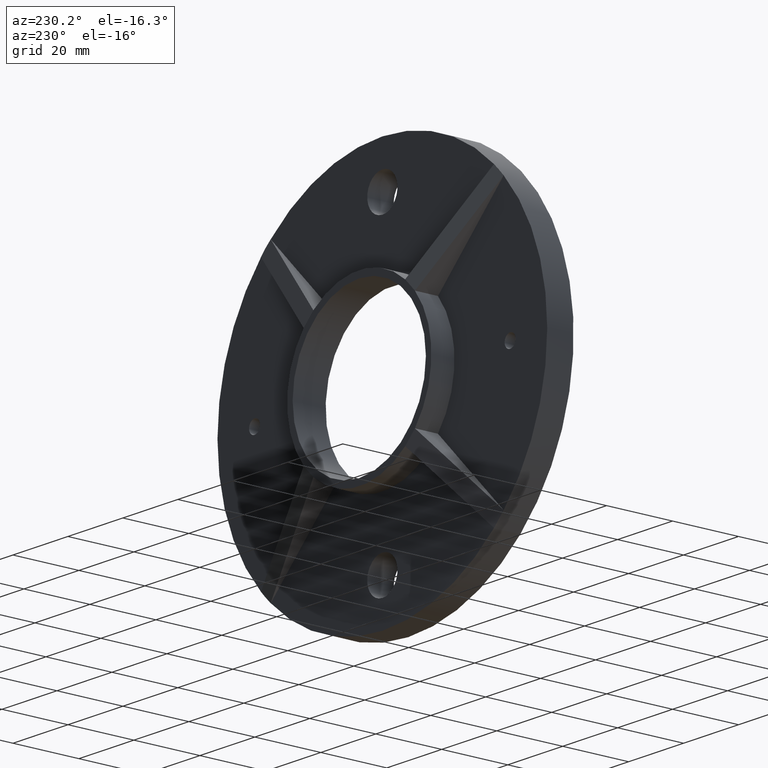
[diagram: clean part render]
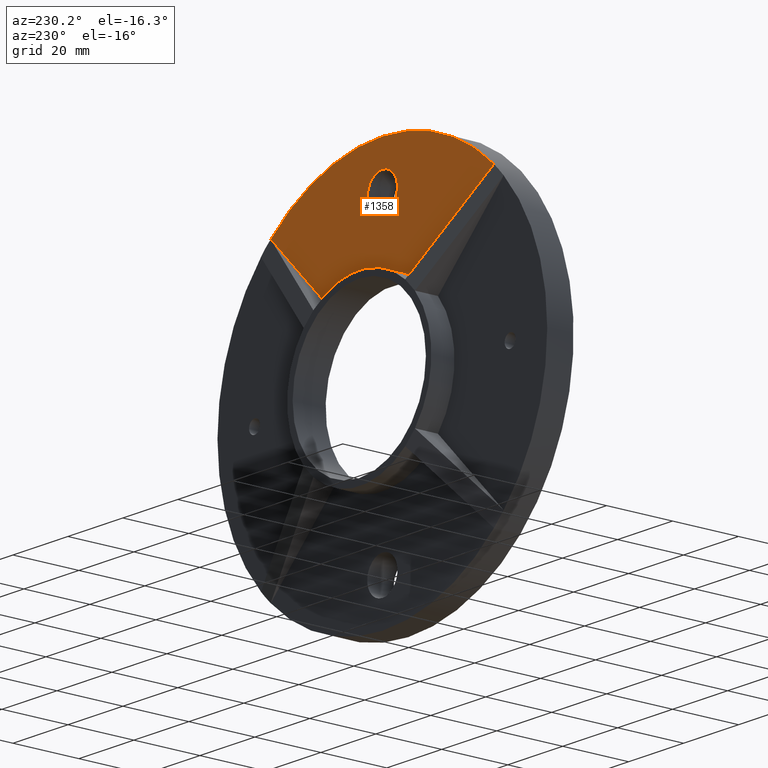
[diagram: same view with one face highlighted and labeled with its STEP entity id]
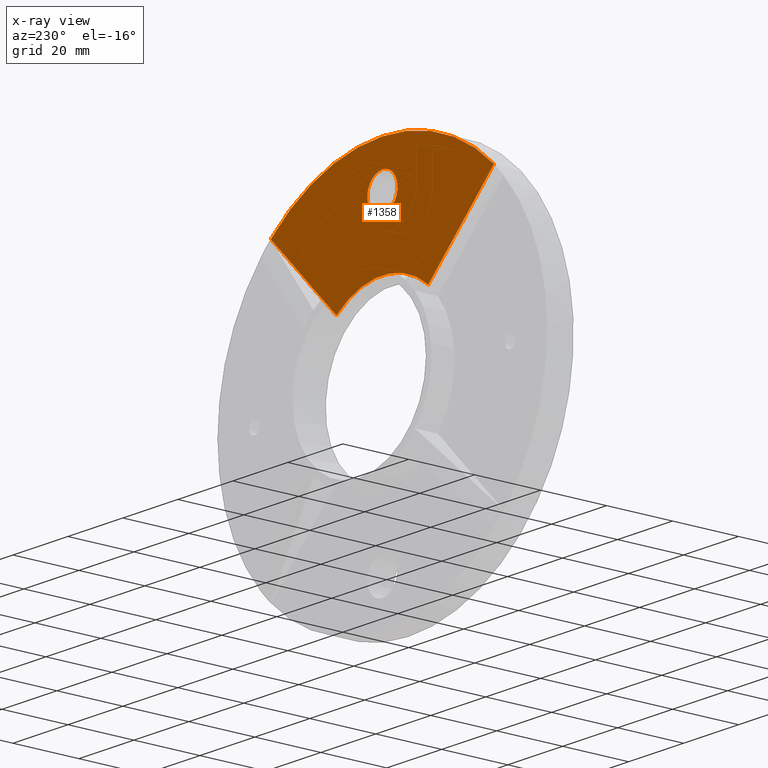
[diagram: x-ray of the same camera — body ghosted, the highlighted face saturated]
A machine part, auxiliary view. The second image highlights one B-rep face of the part: STEP entity #1358.
The next image is the same camera in x-ray: the body ghosted, the highlighted face saturated — about 0% of this face is hidden behind the body in this view.
In plain terms, the highlighted planar face has unit normal (0, 1, 0).
Its self-contained STEP definition (entity closure, byte-faithful):
#407 = DIRECTION ( 'NONE',  ( 0.000000000000000000, -0.000000000000000000, 1.000000000000000000 ) ) ;
#519 = EDGE_CURVE ( 'NONE', #7419, #3045, #3694, .T. ) ;
#637 = CARTESIAN_POINT ( 'NONE',  ( 0.000000000000000000, 8.000000000000000000, 0.000000000000000000 ) ) ;
#1189 = CARTESIAN_POINT ( 'NONE',  ( 0.000000000000000000, 8.000000000000000000, 0.000000000000000000 ) ) ;
#1307 = AXIS2_PLACEMENT_3D ( 'NONE', #2129, #8374, #11202 ) ;
#1358 = ADVANCED_FACE ( 'NONE', ( #11126, #8719 ), #9526, .T. ) ;
#1507 = DIRECTION ( 'NONE',  ( 0.000000000000000000, 0.000000000000000000, 1.000000000000000000 ) ) ;
#1566 = DIRECTION ( 'NONE',  ( 0.000000000000000000, 0.000000000000000000, 1.000000000000000000 ) ) ;
#2129 = CARTESIAN_POINT ( 'NONE',  ( 0.000000000000000000, 8.000000000000000000, 0.000000000000000000 ) ) ;
#2282 = ORIENTED_EDGE ( 'NONE', *, *, #9725, .F. ) ;
#2570 = EDGE_CURVE ( 'NONE', #5479, #5479, #11416, .T. ) ;
#2841 = CARTESIAN_POINT ( 'NONE',  ( 40.62179544156646926, 8.000000000000000000, 44.15732934749936334 ) ) ;
#3045 = VERTEX_POINT ( 'NONE', #2841 ) ;
#3152 = EDGE_LOOP ( 'NONE', ( #6492 ) ) ;
#3379 = CARTESIAN_POINT ( 'NONE',  ( 16.70941492090170399, 8.000000000000000000, 20.24494882683449504 ) ) ;
#3430 = DIRECTION ( 'NONE',  ( 0.000000000000000000, 1.000000000000000000, 0.000000000000000000 ) ) ;
#3694 = LINE ( 'NONE', #5758, #10725 ) ;
#3811 = CARTESIAN_POINT ( 'NONE',  ( -16.70941492090176439, 8.000000000000000000, 20.24494882683444530 ) ) ;
#4549 = ORIENTED_EDGE ( 'NONE', *, *, #7718, .F. ) ;
#4971 = ORIENTED_EDGE ( 'NONE', *, *, #519, .F. ) ;
#5426 = EDGE_LOOP ( 'NONE', ( #4549, #2282, #11722, #4971 ) ) ;
#5479 = VERTEX_POINT ( 'NONE', #11093 ) ;
#5758 = CARTESIAN_POINT ( 'NONE',  ( 16.70941492090170399, 8.000000000000000000, 20.24494882683449504 ) ) ;
#6069 = CARTESIAN_POINT ( 'NONE',  ( 0.000000000000000000, 8.000000000000000000, 46.50000000000000000 ) ) ;
#6492 = ORIENTED_EDGE ( 'NONE', *, *, #2570, .F. ) ;
#6510 = LINE ( 'NONE', #3811, #9951 ) ;
#6683 = CARTESIAN_POINT ( 'NONE',  ( -40.62179544156660427, 8.000000000000000000, 44.15732934749920702 ) ) ;
#6781 = VERTEX_POINT ( 'NONE', #6683 ) ;
#7419 = VERTEX_POINT ( 'NONE', #3379 ) ;
#7514 = DIRECTION ( 'NONE',  ( 0.7071067811865464625, 0.000000000000000000, 0.7071067811865486830 ) ) ;
#7718 = EDGE_CURVE ( 'NONE', #8984, #7419, #11375, .T. ) ;
#8187 = EDGE_CURVE ( 'NONE', #6781, #3045, #9427, .T. ) ;
#8374 = DIRECTION ( 'NONE',  ( 0.000000000000000000, 1.000000000000000000, 0.000000000000000000 ) ) ;
#8719 = FACE_OUTER_BOUND ( 'NONE', #5426, .T. ) ;
#8984 = VERTEX_POINT ( 'NONE', #9497 ) ;
#9427 = CIRCLE ( 'NONE', #11105, 60.00000000000000000 ) ;
#9456 = DIRECTION ( 'NONE',  ( 0.000000000000000000, 1.000000000000000000, 0.000000000000000000 ) ) ;
#9497 = CARTESIAN_POINT ( 'NONE',  ( -16.70941492090177150, 8.000000000000000000, 20.24494882683443819 ) ) ;
#9526 = PLANE ( 'NONE',  #9754 ) ;
#9601 = DIRECTION ( 'NONE',  ( 0.7071067811865487940, -0.000000000000000000, -0.7071067811865463515 ) ) ;
#9725 = EDGE_CURVE ( 'NONE', #6781, #8984, #6510, .T. ) ;
#9754 = AXIS2_PLACEMENT_3D ( 'NONE', #1189, #9456, #407 ) ;
#9804 = DIRECTION ( 'NONE',  ( 0.000000000000000000, 1.000000000000000000, 0.000000000000000000 ) ) ;
#9951 = VECTOR ( 'NONE', #9601, 999.9999999999998863 ) ;
#10509 = AXIS2_PLACEMENT_3D ( 'NONE', #6069, #3430, #1507 ) ;
#10725 = VECTOR ( 'NONE', #7514, 1000.000000000000000 ) ;
#11093 = CARTESIAN_POINT ( 'NONE',  ( 0.000000000000000000, 8.000000000000000000, 52.00000000000000000 ) ) ;
#11105 = AXIS2_PLACEMENT_3D ( 'NONE', #637, #9804, #1566 ) ;
#11126 = FACE_BOUND ( 'NONE', #3152, .T. ) ;
#11202 = DIRECTION ( 'NONE',  ( 0.000000000000000000, 0.000000000000000000, 1.000000000000000000 ) ) ;
#11375 = CIRCLE ( 'NONE', #1307, 26.25000000000000355 ) ;
#11416 = CIRCLE ( 'NONE', #10509, 5.499999999999998224 ) ;
#11722 = ORIENTED_EDGE ( 'NONE', *, *, #8187, .T. ) ;